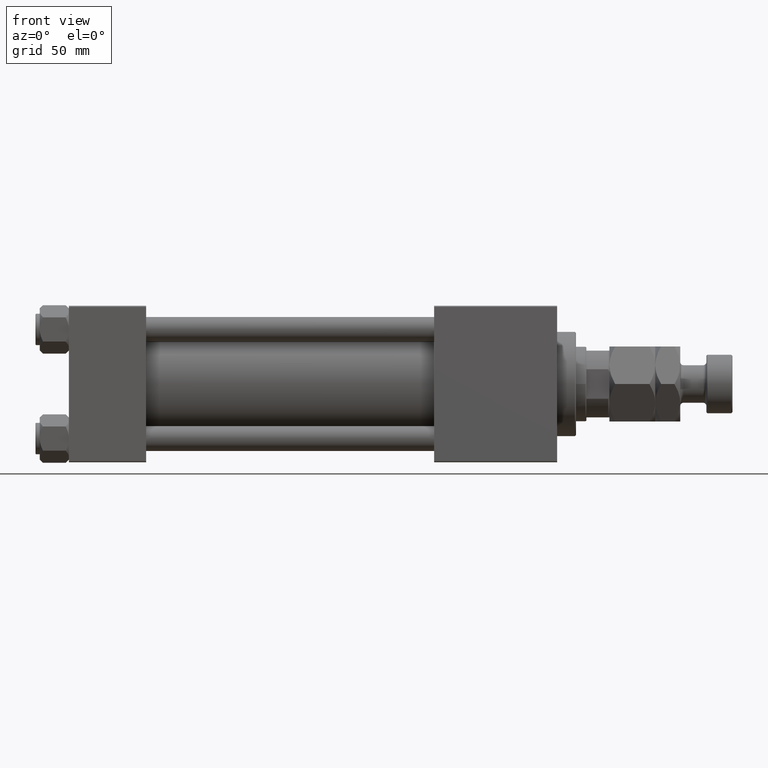
[diagram: clean part render]
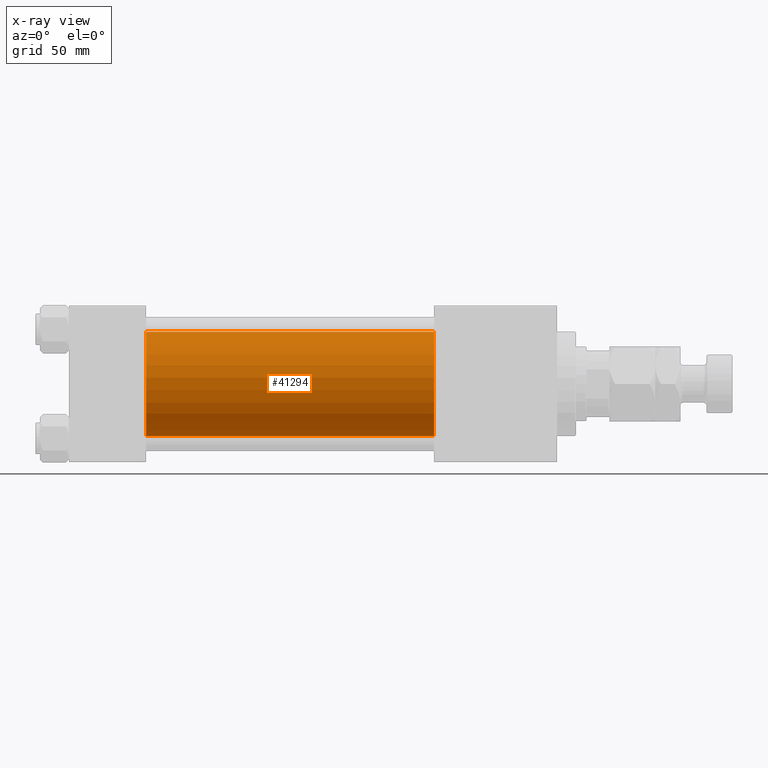
[diagram: x-ray — body ghosted, one internal face saturated and labeled with its STEP entity id]
A machine part, front view, then the same camera in x-ray: the body is ghosted and one INTERNAL B-rep face — a face not visible from any outside direction — is saturated and labeled: STEP entity #41294.
In plain terms, the highlighted cylindrical surface (partial cylindrical patch) has radius 25 mm, axis along (-1, -0, -0).
Its self-contained STEP definition (entity closure, byte-faithful):
#1132 = EDGE_CURVE ( 'NONE', #4094, #14464, #48278, .T. ) ;
#1518 = DIRECTION ( 'NONE',  ( 1.000000000000000000, 0.000000000000000000, 0.000000000000000000 ) ) ;
#1557 = DIRECTION ( 'NONE',  ( -1.000000000000000000, -0.000000000000000000, -0.000000000000000000 ) ) ;
#1804 = CYLINDRICAL_SURFACE ( 'NONE', #51959, 25.00000000000000000 ) ;
#2072 = DIRECTION ( 'NONE',  ( -1.000000000000000000, -0.000000000000000000, -0.000000000000000000 ) ) ;
#2979 = EDGE_CURVE ( 'NONE', #14464, #10809, #13223, .T. ) ;
#4094 = VERTEX_POINT ( 'NONE', #4459 ) ;
#4459 = CARTESIAN_POINT ( 'NONE',  ( 175.0000000000000284, -2.602085213965210642E-15, 25.00000000000000000 ) ) ;
#9061 = VECTOR ( 'NONE', #1557, 1000.000000000000000 ) ;
#9999 = DIRECTION ( 'NONE',  ( 0.000000000000000000, 0.000000000000000000, 1.000000000000000000 ) ) ;
#10809 = VERTEX_POINT ( 'NONE', #51364 ) ;
#12568 = ORIENTED_EDGE ( 'NONE', *, *, #45848, .F. ) ;
#13223 = LINE ( 'NONE', #45893, #47368 ) ;
#14297 = DIRECTION ( 'NONE',  ( 1.000000000000000000, 0.000000000000000000, 0.000000000000000000 ) ) ;
#14464 = VERTEX_POINT ( 'NONE', #17057 ) ;
#15832 = AXIS2_PLACEMENT_3D ( 'NONE', #34872, #14297, #30903 ) ;
#16929 = DIRECTION ( 'NONE',  ( -1.000000000000000000, -0.000000000000000000, -0.000000000000000000 ) ) ;
#17057 = CARTESIAN_POINT ( 'NONE',  ( 175.0000000000000284, 4.595317839031724996E-16, -25.00000000000000000 ) ) ;
#21366 = LINE ( 'NONE', #46385, #9061 ) ;
#22368 = CARTESIAN_POINT ( 'NONE',  ( 175.0000000000000284, -2.602085213965210642E-15, 0.000000000000000000 ) ) ;
#26264 = ORIENTED_EDGE ( 'NONE', *, *, #2979, .T. ) ;
#30903 = DIRECTION ( 'NONE',  ( 0.000000000000000000, 0.000000000000000000, -1.000000000000000000 ) ) ;
#33122 = EDGE_LOOP ( 'NONE', ( #37976, #26264, #12568, #44615 ) ) ;
#34872 = CARTESIAN_POINT ( 'NONE',  ( 37.00000000000000000, -2.602085213965210642E-15, 0.000000000000000000 ) ) ;
#36530 = AXIS2_PLACEMENT_3D ( 'NONE', #22368, #1518, #37928 ) ;
#37751 = CIRCLE ( 'NONE', #15832, 25.00000000000000000 ) ;
#37928 = DIRECTION ( 'NONE',  ( 0.000000000000000000, 0.000000000000000000, -1.000000000000000000 ) ) ;
#37976 = ORIENTED_EDGE ( 'NONE', *, *, #1132, .T. ) ;
#41294 = ADVANCED_FACE ( 'NONE', ( #46375 ), #1804, .F. ) ;
#41380 = CARTESIAN_POINT ( 'NONE',  ( 175.0000000000000284, -2.602085213965210642E-15, 0.000000000000000000 ) ) ;
#42220 = EDGE_CURVE ( 'NONE', #4094, #44042, #21366, .T. ) ;
#43961 = CARTESIAN_POINT ( 'NONE',  ( 37.00000000000000000, -2.602085213965210642E-15, 25.00000000000000000 ) ) ;
#44042 = VERTEX_POINT ( 'NONE', #43961 ) ;
#44615 = ORIENTED_EDGE ( 'NONE', *, *, #42220, .F. ) ;
#45848 = EDGE_CURVE ( 'NONE', #44042, #10809, #37751, .T. ) ;
#45893 = CARTESIAN_POINT ( 'NONE',  ( 175.0000000000000284, 4.595317839031724996E-16, -25.00000000000000000 ) ) ;
#46375 = FACE_OUTER_BOUND ( 'NONE', #33122, .T. ) ;
#46385 = CARTESIAN_POINT ( 'NONE',  ( 175.0000000000000284, -2.602085213965210642E-15, 25.00000000000000000 ) ) ;
#47368 = VECTOR ( 'NONE', #16929, 1000.000000000000000 ) ;
#48278 = CIRCLE ( 'NONE', #36530, 25.00000000000000000 ) ;
#51364 = CARTESIAN_POINT ( 'NONE',  ( 37.00000000000000000, 4.595317839031724996E-16, -25.00000000000000000 ) ) ;
#51959 = AXIS2_PLACEMENT_3D ( 'NONE', #41380, #2072, #9999 ) ;